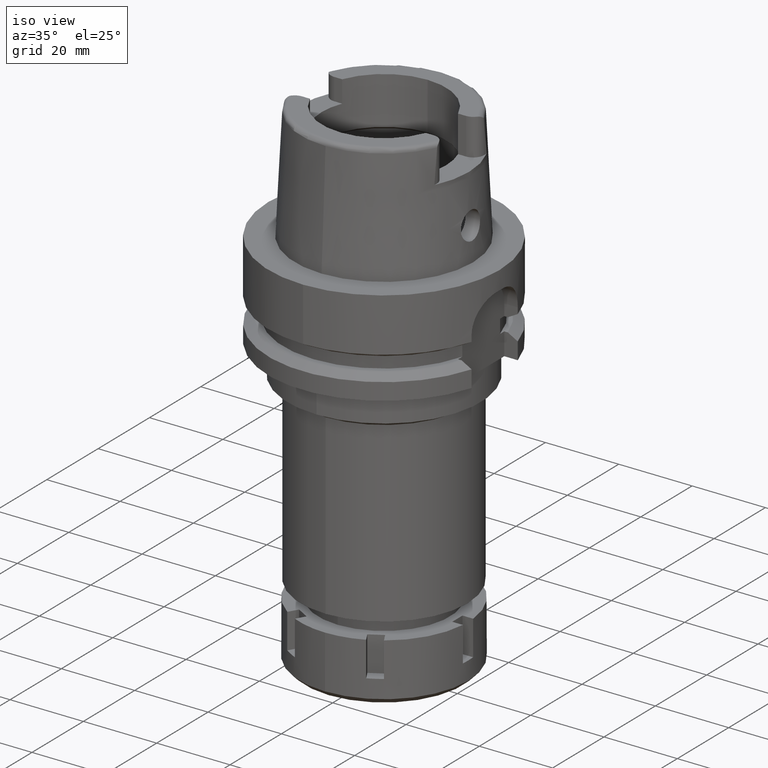
[diagram: clean part render]
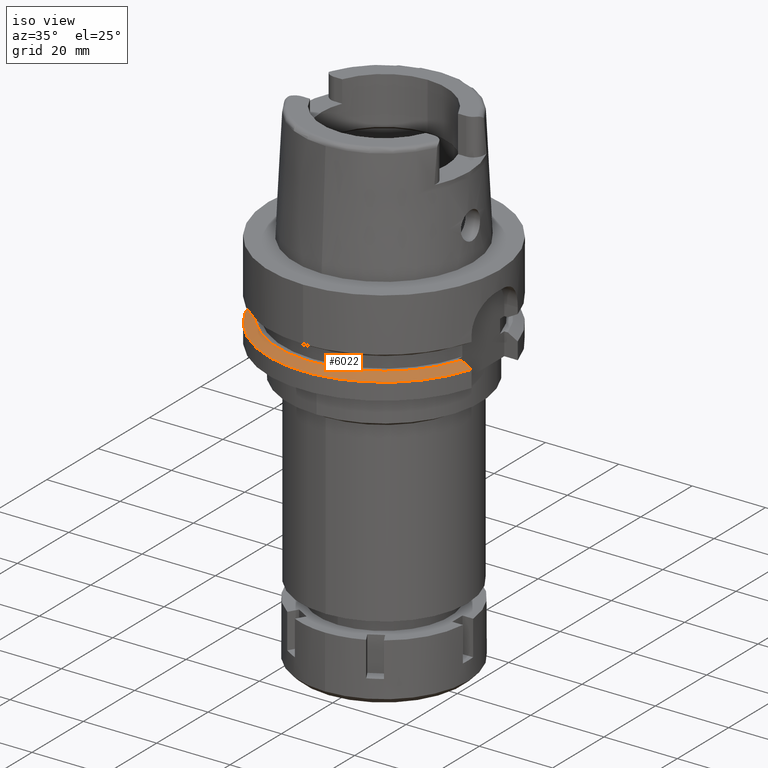
[diagram: same view with one face highlighted and labeled with its STEP entity id]
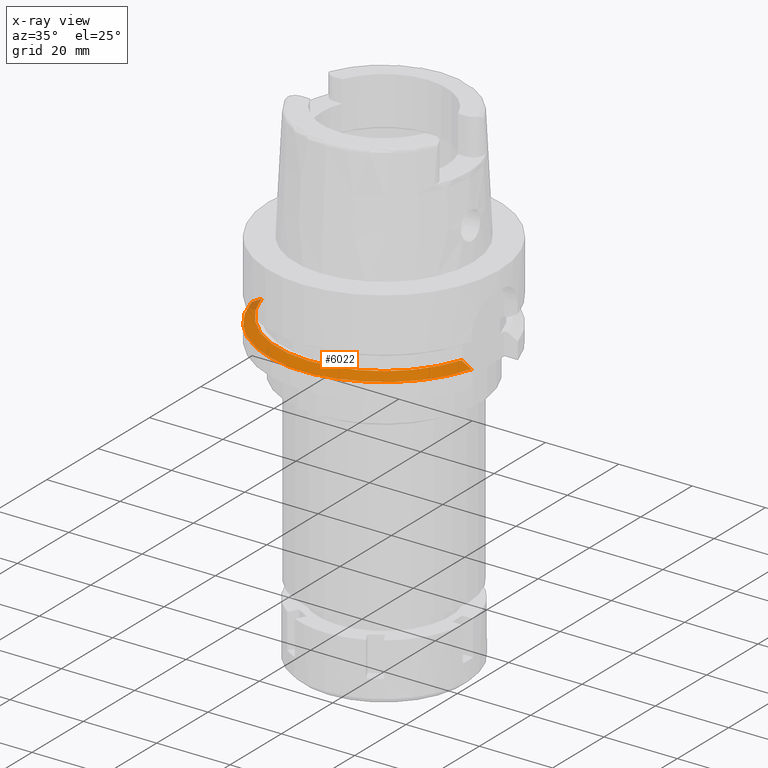
[diagram: x-ray of the same camera — body ghosted, the highlighted face saturated]
A machine part, iso view. The second image highlights one B-rep face of the part: STEP entity #6022.
The next image is the same camera in x-ray: the body ghosted, the highlighted face saturated — about 2% of this face is hidden behind the body in this view.
In plain terms, the highlighted conical surface has half-angle 60 deg.
Its self-contained STEP definition (entity closure, byte-faithful):
#65 = CARTESIAN_POINT ( 'NONE',  ( 29.24010044504802153, -8.999999709175824592, -20.85364081948881676 ) ) ;
#190 = VERTEX_POINT ( 'NONE', #5158 ) ;
#466 = EDGE_CURVE ( 'NONE', #5766, #2019, #6041, .T. ) ;
#477 = CARTESIAN_POINT ( 'NONE',  ( 0.0000000000000000000, 0.0000000000000000000, -19.87500000000000000 ) ) ;
#560 = ORIENTED_EDGE ( 'NONE', *, *, #466, .T. ) ;
#969 = AXIS2_PLACEMENT_3D ( 'NONE', #477, #3745, #2209 ) ;
#1069 = CIRCLE ( 'NONE', #969, 28.89759526419000224 ) ;
#1143 = CARTESIAN_POINT ( 'NONE',  ( -27.76816321573999957, -8.000000145197999402, -19.87500000000000000 ) ) ;
#1261 = AXIS2_PLACEMENT_3D ( 'NONE', #5075, #5661, #2715 ) ;
#1412 = CARTESIAN_POINT ( 'NONE',  ( 30.18691769625000276, -9.000000000000000000, -21.37749907476000288 ) ) ;
#1596 = CARTESIAN_POINT ( 'NONE',  ( -29.52968310034250266, -8.000000950389056342, -20.85397315499957216 ) ) ;
#1712 = CARTESIAN_POINT ( 'NONE',  ( 0.0000000000000000000, 0.0000000000000000000, -21.37749907476000288 ) ) ;
#1971 = EDGE_CURVE ( 'NONE', #2646, #190, #2544, .T. ) ;
#2019 = VERTEX_POINT ( 'NONE', #5130 ) ;
#2209 = DIRECTION ( 'NONE',  ( 0.0000000000000000000, -1.000000000000000000, 0.0000000000000000000 ) ) ;
#2271 = CIRCLE ( 'NONE', #2363, 31.49999999999999645 ) ;
#2363 = AXIS2_PLACEMENT_3D ( 'NONE', #1712, #3575, #3542 ) ;
#2544 = B_SPLINE_CURVE_WITH_KNOTS ( 'NONE', 3,
 ( #1412, #65, #5629, #5658 ),
 .UNSPECIFIED., .F., .F.,
 ( 4, 4 ),
 ( 0.0000000000000000000, 1.000000000000000000 ),
 .UNSPECIFIED. ) ;
#2646 = VERTEX_POINT ( 'NONE', #3038 ) ;
#2715 = DIRECTION ( 'NONE',  ( 0.0000000000000000000, -1.000000000000000000, 0.0000000000000000000 ) ) ;
#2937 = ORIENTED_EDGE ( 'NONE', *, *, #3887, .F. ) ;
#3008 = CARTESIAN_POINT ( 'NONE',  ( -30.46719534834999976, -8.000000475350997675, -21.37750339009999934 ) ) ;
#3038 = CARTESIAN_POINT ( 'NONE',  ( 30.18691769625000276, -9.000000000000000000, -21.37749907476000288 ) ) ;
#3330 = ORIENTED_EDGE ( 'NONE', *, *, #1971, .T. ) ;
#3485 = CARTESIAN_POINT ( 'NONE',  ( -28.63001149721434402, -8.000000290691701821, -20.35313946739868385 ) ) ;
#3542 = DIRECTION ( 'NONE',  ( 0.9583148474999051425, -0.2857142857143015191, 0.0000000000000000000 ) ) ;
#3575 = DIRECTION ( 'NONE',  ( 0.0000000000000000000, 0.0000000000000000000, -1.000000000000000000 ) ) ;
#3711 = FACE_OUTER_BOUND ( 'NONE', #4118, .T. ) ;
#3745 = DIRECTION ( 'NONE',  ( 0.0000000000000000000, 0.0000000000000000000, -1.000000000000000000 ) ) ;
#3887 = EDGE_CURVE ( 'NONE', #2646, #2019, #2271, .T. ) ;
#3945 = CARTESIAN_POINT ( 'NONE',  ( -27.76816321573999957, -8.000000145197999402, -19.87500000000000000 ) ) ;
#4118 = EDGE_LOOP ( 'NONE', ( #560, #2937, #3330, #4676 ) ) ;
#4676 = ORIENTED_EDGE ( 'NONE', *, *, #5644, .T. ) ;
#5075 = CARTESIAN_POINT ( 'NONE',  ( 0.0000000000000000000, 0.0000000000000000000, -20.62624953738000144 ) ) ;
#5130 = CARTESIAN_POINT ( 'NONE',  ( -30.46719534834999976, -8.000000475350997675, -21.37750339009999934 ) ) ;
#5158 = CARTESIAN_POINT ( 'NONE',  ( 27.46035345827000285, -9.000000000000000000, -19.87500000000000000 ) ) ;
#5317 = CONICAL_SURFACE ( 'NONE', #1261, 30.19879763209999979, 1.047197551196400456 ) ;
#5629 = CARTESIAN_POINT ( 'NONE',  ( 28.33125883934195954, -8.999998543035536258, -20.35280924244215583 ) ) ;
#5644 = EDGE_CURVE ( 'NONE', #190, #5766, #1069, .T. ) ;
#5658 = CARTESIAN_POINT ( 'NONE',  ( 27.46035345827000285, -9.000000000000000000, -19.87500000000000000 ) ) ;
#5661 = DIRECTION ( 'NONE',  ( 0.0000000000000000000, 0.0000000000000000000, -1.000000000000000000 ) ) ;
#5766 = VERTEX_POINT ( 'NONE', #1143 ) ;
#6022 = ADVANCED_FACE ( 'NONE', ( #3711 ), #5317, .T. ) ;
#6041 = B_SPLINE_CURVE_WITH_KNOTS ( 'NONE', 3,
 ( #3945, #3485, #1596, #3008 ),
 .UNSPECIFIED., .F., .F.,
 ( 4, 4 ),
 ( 0.0000000000000000000, 1.000000000000000000 ),
 .UNSPECIFIED. ) ;